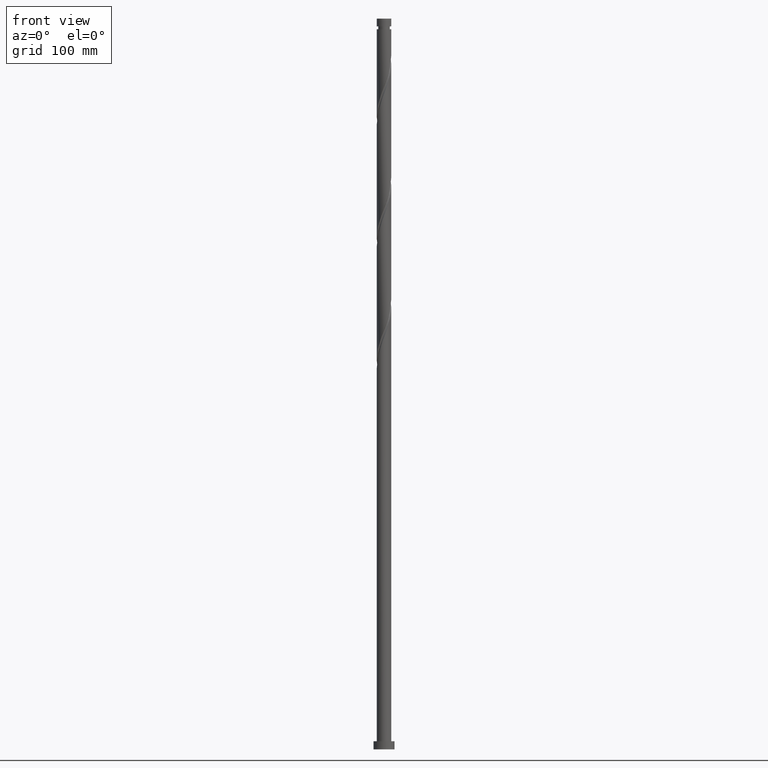
[diagram: clean part render]
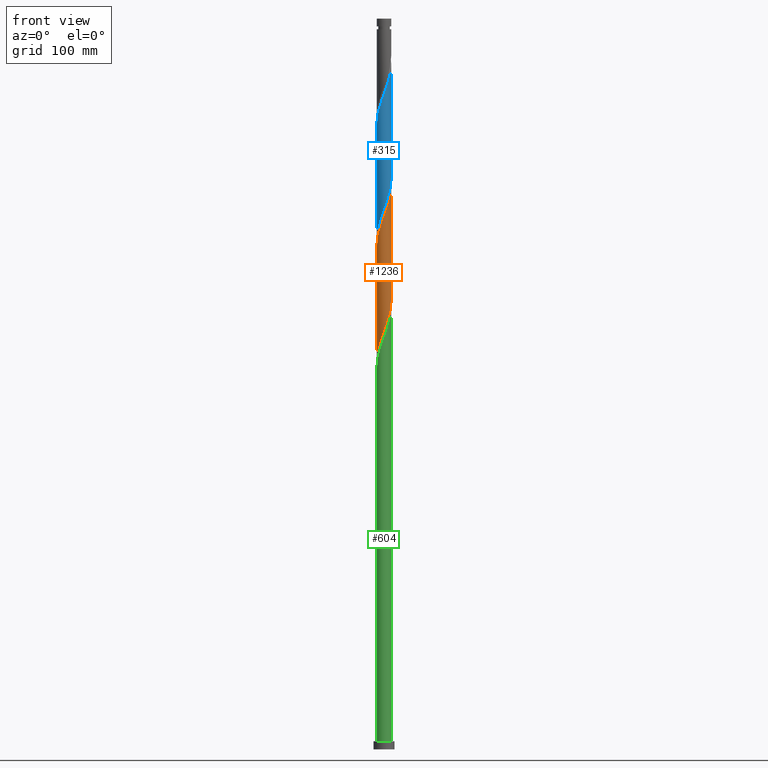
[diagram: same view with three faces highlighted in distinct colors, each labeled with its STEP entity id]
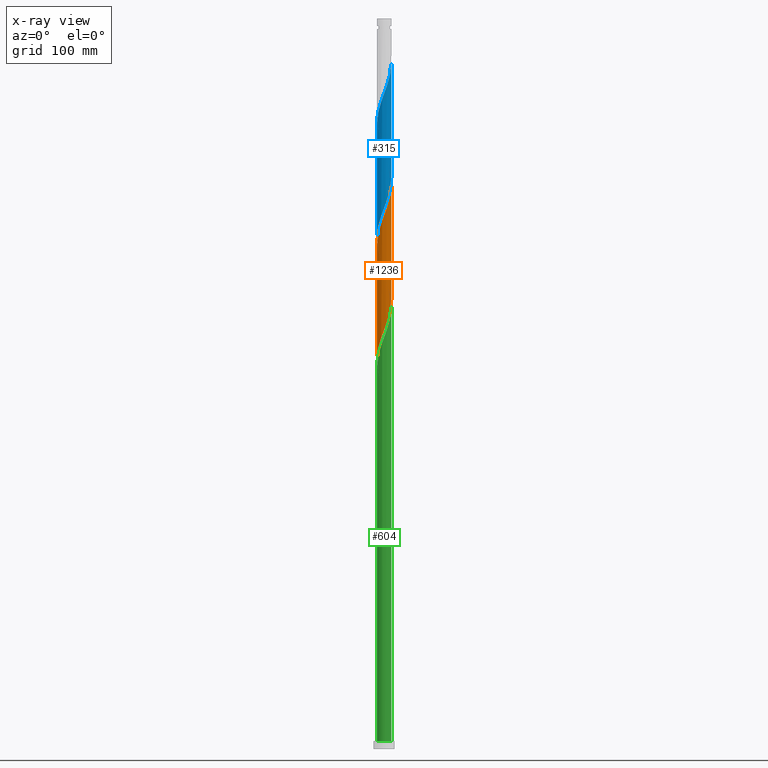
[diagram: x-ray of the same camera — body ghosted, the three highlighted faces saturated]
A machine part, front view with three faces highlighted in distinct colors.
The next image is the same camera in x-ray (body ghosted, the three faces saturated) — at least one of them is partly hidden behind the body in this view.
Their STEP definitions:

[orange] entity #1236 — the highlighted cylindrical surface (edge-blend (fillet) strip) has radius 6.25 mm, axis along (-0, -0, -1).
#55 = CARTESIAN_POINT ( 'NONE',  ( 0.6761694631508513575, -6.240248954859151098, 461.7184717779121002 ) ) ;
#97 = DIRECTION ( 'NONE',  ( -0.000000000000000000, -0.000000000000000000, -1.000000000000000000 ) ) ;
#180 = CARTESIAN_POINT ( 'NONE',  ( 5.284647128575529429, -3.386800390923074389, 378.3361188367356363 ) ) ;
#193 = CARTESIAN_POINT ( 'NONE',  ( -6.250000000000010658, -6.334027216052155665E-15, 433.6643806502768825 ) ) ;
#207 = CARTESIAN_POINT ( 'NONE',  ( -4.703723798979369874, -4.156067201626243879, 347.4537658955592292 ) ) ;
#216 = CARTESIAN_POINT ( 'NONE',  ( -5.816988907484617499, -2.358082316569832138, 440.1008247190885072 ) ) ;
#232 = CARTESIAN_POINT ( 'NONE',  ( 6.250000000000011546, 6.662679571602031845E-15, 486.1643806502768257 ) ) ;
#235 = CARTESIAN_POINT ( 'NONE',  ( -1.052857513261137079, -6.160681054621292674, 457.0861188367356363 ) ) ;
#258 = CARTESIAN_POINT ( 'NONE',  ( 5.387309307051779683, -3.220995279672368206, 477.1596482485003321 ) ) ;
#267 = CARTESIAN_POINT ( 'NONE',  ( 6.037255239842540533, -1.616802142809667275, 481.7920011896768528 ) ) ;
#307 = CARTESIAN_POINT ( 'NONE',  ( -1.811299129615713932, -6.009751045140860448, 356.7184717779121570 ) ) ;
#329 = CARTESIAN_POINT ( 'NONE',  ( 3.207255081654753592, -5.364327995303769470, 370.6155306014414350 ) ) ;
#337 = CYLINDRICAL_SURFACE ( 'NONE', #1755, 6.250000000000000000 ) ;
#354 = CARTESIAN_POINT ( 'NONE',  ( -5.984114506671566858, -1.803572446851818611, 438.5567070720297238 ) ) ;
#366 = CARTESIAN_POINT ( 'NONE',  ( -5.550818018030080125, -2.872441353746455039, 441.6449423661474611 ) ) ;
#374 = CARTESIAN_POINT ( 'NONE',  ( -1.623728683116540505, -6.063119438469199096, 455.5420011896766823 ) ) ;
#385 = CARTESIAN_POINT ( 'NONE',  ( 5.045516553015578332, -3.688531240649310039, 475.6155306014414350 ) ) ;
#405 = CARTESIAN_POINT ( 'NONE',  ( 6.250000000000010658, -0.2403199242980256778, 485.5209748982171618 ) ) ;
#411 =( BOUNDED_CURVE ( )  B_SPLINE_CURVE ( 2, ( #193, #557, #1557, #1196, #354, #216, #366, #2055, #1889, #861, #536, #1226, #1878, #713, #1058, #374, #235, #1041, #1716, #55, #546, #902, #1235, #1547, #873, #700, #1215, #1900, #385, #258, #1623, #752, #267, #1082, #952, #405, #1600 ),
 .UNSPECIFIED., .F., .F. ) 
 B_SPLINE_CURVE_WITH_KNOTS ( ( 3, 2, 2, 2, 2, 2, 2, 2, 2, 2, 2, 2, 2, 2, 2, 2, 2, 2, 3 ),
 ( 0.3045293573162906053, 0.3088235294117647189, 0.3161764705882352811, 0.3235294117647058432, 0.3308823529411765163, 0.3382352941176470784, 0.3455882352941176405, 0.3529411764705882026, 0.3602941176470588758, 0.3676470588235294379, 0.3750000000000000000, 0.3823529411764705621, 0.3897058823529411242, 0.3970588235294117974, 0.4044117647058823595, 0.4117647058823529216, 0.4191176470588234837, 0.4264705882352941568, 0.4295293573162903278 ),
 .UNSPECIFIED. ) 
 CURVE ( )  GEOMETRIC_REPRESENTATION_ITEM ( )  RATIONAL_B_SPLINE_CURVE ( ( 0.9072066346053186958, 0.9068261157890858959, 0.9090909090909571333, 0.9052128875409882758, 0.9090909090909571333, 0.9052128875409882758, 0.9090909090909571333, 0.9052128875409882758, 0.9090909090909571333, 0.9052128875409882758, 0.9090909090909571333, 0.9052128875409882758, 0.9090909090909571333, 0.9052128875409882758, 0.9090909090909571333, 0.9052128875409882758, 0.9090909090909571333, 0.9052128875409882758, 0.9090909090909571333, 0.9052128875409882758, 0.9090909090909571333, 0.9052128875409882758, 0.9090909090909571333, 0.9052128875409882758, 0.9090909090909571333, 0.9052128875409882758, 0.9090909090909571333, 0.9052128875409882758, 0.9090909090909571333, 0.9052128875409882758, 0.9090909090909571333, 0.9052128875409882758, 0.9090909090909571333, 0.9052128875409882758, 0.9090909090909571333, 0.9074776808428596242, 0.9072066346053186958 ) ) 
 REPRESENTATION_ITEM ( '' )  );
#457 = CARTESIAN_POINT ( 'NONE',  ( 0.000000000000000000, 0.000000000000000000, 630.0000000000000000 ) ) ;
#469 = CARTESIAN_POINT ( 'NONE',  ( -0.09709155987255996267, -6.249245812816258017, 361.3508247190885072 ) ) ;
#487 = DIRECTION ( 'NONE',  ( -0.000000000000000000, -0.000000000000000000, -1.000000000000000000 ) ) ;
#492 = CARTESIAN_POINT ( 'NONE',  ( 4.138338151638115470, -4.683658542496072386, 373.7037658955590587 ) ) ;
#536 = CARTESIAN_POINT ( 'NONE',  ( -4.138338151638125240, -4.683658542496078603, 447.8214129543826516 ) ) ;
#546 = CARTESIAN_POINT ( 'NONE',  ( 1.243734296383282700, -6.125000000000010658, 463.2625894249709972 ) ) ;
#557 = CARTESIAN_POINT ( 'NONE',  ( -6.250000000000009770, -0.3376248979954161733, 434.5682998822895229 ) ) ;
#621 = VECTOR ( 'NONE', #97, 1000.000000000000000 ) ;
#656 = CARTESIAN_POINT ( 'NONE',  ( 5.816988907484607729, -2.358082316569825920, 381.4243541308533167 ) ) ;
#676 = CARTESIAN_POINT ( 'NONE',  ( 2.710176889971708469, -5.661523945598178287, 369.0714129543828221 ) ) ;
#677 = ORIENTED_EDGE ( 'NONE', *, *, #2182, .T. ) ;
#688 = CARTESIAN_POINT ( 'NONE',  ( -5.887436458037860199, -2.176236226627275894, 341.2772953073238114 ) ) ;
#700 = CARTESIAN_POINT ( 'NONE',  ( 3.859958618427608013, -4.949609239681941553, 470.9831776602648574 ) ) ;
#713 = CARTESIAN_POINT ( 'NONE',  ( -2.710176889971715131, -5.661523945598188057, 452.4537658955591723 ) ) ;
#721 = CARTESIAN_POINT ( 'NONE',  ( -5.637372882544817720, -2.698615753149817831, 342.8214129543825379 ) ) ;
#752 = CARTESIAN_POINT ( 'NONE',  ( 5.887436458037868192, -2.176236226627279891, 480.2478835426179558 ) ) ;
#800 = CARTESIAN_POINT ( 'NONE',  ( 2.166952786544122045, -5.862321692033683362, 367.5272953073238114 ) ) ;
#824 = CARTESIAN_POINT ( 'NONE',  ( 5.984114506671557976, -1.803572446851815947, 382.9684717779120433 ) ) ;
#839 = EDGE_CURVE ( 'NONE', #1996, #1678, #1001, .T. ) ;
#844 = DIRECTION ( 'NONE',  ( -1.000000000000000000, 0.000000000000000000, 0.000000000000000000 ) ) ;
#847 = CARTESIAN_POINT ( 'NONE',  ( 4.572343029938433112, -4.300185039982784119, 375.2478835426180694 ) ) ;
#861 = CARTESIAN_POINT ( 'NONE',  ( -4.572343029938441994, -4.300185039982788560, 446.2772953073238682 ) ) ;
#873 = CARTESIAN_POINT ( 'NONE',  ( 3.372352897531494254, -5.262103755582083764, 469.4390600132061877 ) ) ;
#882 = CARTESIAN_POINT ( 'NONE',  ( -6.250000000000001776, 7.021209414020131870E-15, 335.3607981996649983 ) ) ;
#893 = CARTESIAN_POINT ( 'NONE',  ( -5.387309307051773466, -3.220995279672362432, 344.3655306014414919 ) ) ;
#902 = CARTESIAN_POINT ( 'NONE',  ( 1.811299129615717485, -6.009751045140867554, 464.8067070720296670 ) ) ;
#952 = CARTESIAN_POINT ( 'NONE',  ( 6.231546110836973185, -0.4799302746365665673, 484.8802364837944765 ) ) ;
#974 = DIRECTION ( 'NONE',  ( -0.000000000000000000, -0.000000000000000000, -1.000000000000000000 ) ) ;
#977 = CARTESIAN_POINT ( 'NONE',  ( -2.348023153125543772, -5.792174658311536994, 355.1743541308532031 ) ) ;
#998 = CARTESIAN_POINT ( 'NONE',  ( 1.623728683116535398, -6.063119438469188438, 365.9831776602650848 ) ) ;
#1001 =( BOUNDED_CURVE ( )  B_SPLINE_CURVE ( 2, ( #1852, #1010, #1670, #1693, #824, #656, #1333, #180, #2008, #847, #492, #1165, #329, #676, #800, #998, #1477, #1357, #469, #1138, #1816, #307, #977, #1658, #1912, #2078, #1725, #207, #1050, #893, #721, #688, #1381, #1367, #1733, #1536, #882 ),
 .UNSPECIFIED., .F., .T. ) 
 B_SPLINE_CURVE_WITH_KNOTS ( ( 3, 2, 2, 2, 2, 2, 2, 2, 2, 2, 2, 2, 2, 2, 2, 2, 2, 2, 3 ),
 ( 0.8045293573162904943, 0.8088235294117647189, 0.8161764705882352811, 0.8235294117647058432, 0.8308823529411765163, 0.8382352941176470784, 0.8455882352941176405, 0.8529411764705882026, 0.8602941176470588758, 0.8676470588235294379, 0.8750000000000000000, 0.8823529411764705621, 0.8897058823529411242, 0.8970588235294117974, 0.9044117647058823595, 0.9117647058823529216, 0.9191176470588234837, 0.9264705882352941568, 0.9295293573162902723 ),
 .UNSPECIFIED. ) 
 CURVE ( )  GEOMETRIC_REPRESENTATION_ITEM ( )  RATIONAL_B_SPLINE_CURVE ( ( 0.9072066346053118124, 0.9068261157890789015, 0.9090909090909502499, 0.9052128875409815034, 0.9090909090909502499, 0.9052128875409815034, 0.9090909090909502499, 0.9052128875409815034, 0.9090909090909502499, 0.9052128875409815034, 0.9090909090909502499, 0.9052128875409815034, 0.9090909090909502499, 0.9052128875409815034, 0.9090909090909502499, 0.9052128875409815034, 0.9090909090909502499, 0.9052128875409815034, 0.9090909090909502499, 0.9052128875409815034, 0.9090909090909502499, 0.9052128875409815034, 0.9090909090909502499, 0.9052128875409815034, 0.9090909090909502499, 0.9052128875409815034, 0.9090909090909502499, 0.9052128875409815034, 0.9090909090909502499, 0.9052128875409815034, 0.9090909090909502499, 0.9052128875409815034, 0.9090909090909502499, 0.9052128875409815034, 0.9090909090909502499, 0.9074776808428527408, 0.9072066346053119235 ) ) 
 REPRESENTATION_ITEM ( '' )  );
#1010 = CARTESIAN_POINT ( 'NONE',  ( 6.250000000000001776, -0.3376248979954084573, 386.9568789676522442 ) ) ;
#1041 = CARTESIAN_POINT ( 'NONE',  ( -0.4819863434057358176, -6.258242670773384475, 458.6302364837944765 ) ) ;
#1050 = CARTESIAN_POINT ( 'NONE',  ( -5.045516553015570338, -3.688531240649301157, 345.9096482485003321 ) ) ;
#1058 = CARTESIAN_POINT ( 'NONE',  ( -2.166952786544126486, -5.862321692033693132, 453.9978835426179558 ) ) ;
#1062 = EDGE_CURVE ( 'NONE', #1697, #1593, #411, .T. ) ;
#1082 = CARTESIAN_POINT ( 'NONE',  ( 6.187074021647211985, -1.057368058992059101, 483.3361188367355226 ) ) ;
#1138 = CARTESIAN_POINT ( 'NONE',  ( -0.6761694631508498032, -6.240248954859140440, 359.8067070720299512 ) ) ;
#1165 = CARTESIAN_POINT ( 'NONE',  ( 3.704333273337801824, -5.067132045009359764, 372.1596482485003321 ) ) ;
#1196 = CARTESIAN_POINT ( 'NONE',  ( -6.151240105858516216, -1.249062577133805751, 437.0125894249708267 ) ) ;
#1215 = CARTESIAN_POINT ( 'NONE',  ( 4.281841208703491830, -4.552838220654097157, 472.5272953073238114 ) ) ;
#1226 = CARTESIAN_POINT ( 'NONE',  ( -3.704333273337807597, -5.067132045009369534, 449.3655306014414919 ) ) ;
#1235 = CARTESIAN_POINT ( 'NONE',  ( 2.348023153125546880, -5.792174658311546764, 466.3508247190885072 ) ) ;
#1236 = ADVANCED_FACE ( 'NONE', ( #1838 ), #337, .T. ) ;
#1333 = CARTESIAN_POINT ( 'NONE',  ( 5.550818018030068579, -2.872441353746452819, 379.8802364837944765 ) ) ;
#1357 = CARTESIAN_POINT ( 'NONE',  ( 0.4819863434057327645, -6.258242670773373817, 362.8949423661473475 ) ) ;
#1367 = CARTESIAN_POINT ( 'NONE',  ( -6.187074021647200439, -1.057368058992055770, 338.1890600132061309 ) ) ;
#1381 = CARTESIAN_POINT ( 'NONE',  ( -6.037255239842528987, -1.616802142809664389, 339.7331776602650280 ) ) ;
#1438 = CARTESIAN_POINT ( 'NONE',  ( -6.250000000000001776, 7.021209414020131870E-15, 335.3607981996649983 ) ) ;
#1462 = EDGE_LOOP ( 'NONE', ( #1505, #1644, #677, #2009 ) ) ;
#1477 = CARTESIAN_POINT ( 'NONE',  ( 1.052857513261134859, -6.160681054621281127, 364.4390600132061877 ) ) ;
#1505 = ORIENTED_EDGE ( 'NONE', *, *, #1924, .F. ) ;
#1536 = CARTESIAN_POINT ( 'NONE',  ( -6.249999999999999112, -0.2403199242980288419, 336.0042039517246621 ) ) ;
#1547 = CARTESIAN_POINT ( 'NONE',  ( 2.884747176635378718, -5.574598271482226863, 467.8949423661473475 ) ) ;
#1557 = CARTESIAN_POINT ( 'NONE',  ( -6.213629152942627520, -0.6732850434263675243, 435.4684717779120433 ) ) ;
#1593 = VERTEX_POINT ( 'NONE', #232 ) ;
#1600 = CARTESIAN_POINT ( 'NONE',  ( 6.250000000000011546, 6.662679571602031845E-15, 486.1643806502768257 ) ) ;
#1607 = CARTESIAN_POINT ( 'NONE',  ( 6.250000000000000000, 7.654042494670957606E-16, 630.0000000000000000 ) ) ;
#1623 = CARTESIAN_POINT ( 'NONE',  ( 5.637372882544824826, -2.698615753149824048, 478.7037658955591155 ) ) ;
#1630 = LINE ( 'NONE', #1811, #1696 ) ;
#1644 = ORIENTED_EDGE ( 'NONE', *, *, #1062, .F. ) ;
#1658 = CARTESIAN_POINT ( 'NONE',  ( -2.884747176635376498, -5.574598271482217982, 353.6302364837944197 ) ) ;
#1670 = CARTESIAN_POINT ( 'NONE',  ( 6.213629152942616862, -0.6732850434263704109, 386.0567070720297806 ) ) ;
#1678 = VERTEX_POINT ( 'NONE', #1438 ) ;
#1693 = CARTESIAN_POINT ( 'NONE',  ( 6.151240105858505558, -1.249062577133806418, 384.5125894249709972 ) ) ;
#1696 = VECTOR ( 'NONE', #487, 1000.000000000000000 ) ;
#1697 = VERTEX_POINT ( 'NONE', #1781 ) ;
#1716 = CARTESIAN_POINT ( 'NONE',  ( 0.09709155987255738141, -6.249245812816267787, 460.1743541308533736 ) ) ;
#1725 = CARTESIAN_POINT ( 'NONE',  ( -4.281841208703485613, -4.552838220654089163, 348.9978835426180126 ) ) ;
#1733 = CARTESIAN_POINT ( 'NONE',  ( -6.231546110836961638, -0.4799302746365632366, 336.6449423661473475 ) ) ;
#1755 = AXIS2_PLACEMENT_3D ( 'NONE', #457, #974, #844 ) ;
#1772 = LINE ( 'NONE', #1607, #621 ) ;
#1781 = CARTESIAN_POINT ( 'NONE',  ( -6.250000000000010658, -6.334027216052155665E-15, 433.6643806502768825 ) ) ;
#1811 = CARTESIAN_POINT ( 'NONE',  ( -6.250000000000000000, 0.000000000000000000, 630.0000000000000000 ) ) ;
#1816 = CARTESIAN_POINT ( 'NONE',  ( -1.243734296383283588, -6.124999999999999112, 358.2625894249709404 ) ) ;
#1838 = FACE_OUTER_BOUND ( 'NONE', #1462, .T. ) ;
#1852 = CARTESIAN_POINT ( 'NONE',  ( 6.250000000000001776, -7.260229308965499018E-15, 387.8607981996649983 ) ) ;
#1878 = CARTESIAN_POINT ( 'NONE',  ( -3.207255081654761586, -5.364327995303776575, 450.9096482485003889 ) ) ;
#1889 = CARTESIAN_POINT ( 'NONE',  ( -4.928495079256990152, -3.843492715452933250, 444.7331776602650848 ) ) ;
#1900 = CARTESIAN_POINT ( 'NONE',  ( 4.703723798979374315, -4.156067201626251872, 474.0714129543826516 ) ) ;
#1912 = CARTESIAN_POINT ( 'NONE',  ( -3.372352897531488480, -5.262103755582074882, 352.0861188367356363 ) ) ;
#1924 = EDGE_CURVE ( 'NONE', #1593, #1996, #1772, .T. ) ;
#1996 = VERTEX_POINT ( 'NONE', #2015 ) ;
#2008 = CARTESIAN_POINT ( 'NONE',  ( 4.928495079256984823, -3.843492715452926589, 376.7920011896767960 ) ) ;
#2009 = ORIENTED_EDGE ( 'NONE', *, *, #839, .F. ) ;
#2015 = CARTESIAN_POINT ( 'NONE',  ( 6.250000000000001776, -7.260229308965499018E-15, 387.8607981996649983 ) ) ;
#2055 = CARTESIAN_POINT ( 'NONE',  ( -5.284647128575539199, -3.386800390923078830, 443.1890600132061877 ) ) ;
#2078 = CARTESIAN_POINT ( 'NONE',  ( -3.859958618427603128, -4.949609239681935335, 350.5420011896767960 ) ) ;
#2182 = EDGE_CURVE ( 'NONE', #1697, #1678, #1630, .T. ) ;

[blue] entity #315 — the highlighted cylindrical surface (edge-blend (fillet) strip) has radius 6.25 mm, axis along (-0, -0, -1).
#10 = CARTESIAN_POINT ( 'NONE',  ( -0.4819863434057358176, -6.258242670773384475, 563.6302364837943060 ) ) ;
#31 = CARTESIAN_POINT ( 'NONE',  ( 1.623728683116535398, -6.063119438469188438, 470.9831776602650280 ) ) ;
#43 = CARTESIAN_POINT ( 'NONE',  ( 6.151240105858505558, -1.249062577133806418, 489.5125894249708836 ) ) ;
#52 = CARTESIAN_POINT ( 'NONE',  ( -4.703723798979369874, -4.156067201626243879, 452.4537658955590587 ) ) ;
#87 = CARTESIAN_POINT ( 'NONE',  ( -6.187074021647200439, -1.057368058992055770, 443.1890600132062445 ) ) ;
#132 = CARTESIAN_POINT ( 'NONE',  ( 0.09709155987255738141, -6.249245812816267787, 565.1743541308532031 ) ) ;
#144 = CARTESIAN_POINT ( 'NONE',  ( -1.052857513261137079, -6.160681054621292674, 562.0861188367357499 ) ) ;
#153 = CARTESIAN_POINT ( 'NONE',  ( 5.637372882544824826, -2.698615753149824048, 583.7037658955590587 ) ) ;
#166 = CARTESIAN_POINT ( 'NONE',  ( 6.037255239842540533, -1.616802142809667275, 586.7920011896767392 ) ) ;
#178 = DIRECTION ( 'NONE',  ( -0.000000000000000000, -0.000000000000000000, -1.000000000000000000 ) ) ;
#190 = CARTESIAN_POINT ( 'NONE',  ( 3.704333273337801824, -5.067132045009359764, 477.1596482485003889 ) ) ;
#204 = CARTESIAN_POINT ( 'NONE',  ( 5.816988907484607729, -2.358082316569825920, 486.4243541308533167 ) ) ;
#205 = CARTESIAN_POINT ( 'NONE',  ( 0.000000000000000000, 0.000000000000000000, 630.0000000000000000 ) ) ;
#223 = CARTESIAN_POINT ( 'NONE',  ( -3.859958618427603128, -4.949609239681935335, 455.5420011896768528 ) ) ;
#256 = VECTOR ( 'NONE', #620, 1000.000000000000000 ) ;
#315 = ADVANCED_FACE ( 'NONE', ( #1015 ), #1759, .T. ) ;
#320 = CARTESIAN_POINT ( 'NONE',  ( 6.250000000000012434, 3.047503660553396625E-15, 591.1643806502768257 ) ) ;
#339 = CARTESIAN_POINT ( 'NONE',  ( 5.045516553015578332, -3.688531240649310039, 580.6155306014417192 ) ) ;
#381 = CARTESIAN_POINT ( 'NONE',  ( -2.884747176635376498, -5.574598271482217982, 458.6302364837944765 ) ) ;
#382 = DIRECTION ( 'NONE',  ( -1.000000000000000000, 0.000000000000000000, 0.000000000000000000 ) ) ;
#386 = VERTEX_POINT ( 'NONE', #396 ) ;
#396 = CARTESIAN_POINT ( 'NONE',  ( 6.250000000000012434, 3.047503660553396625E-15, 591.1643806502768257 ) ) ;
#419 = CARTESIAN_POINT ( 'NONE',  ( 6.250000000000001776, -7.260229308965499018E-15, 492.8607981996651120 ) ) ;
#451 = VECTOR ( 'NONE', #178, 1000.000000000000000 ) ;
#480 = CARTESIAN_POINT ( 'NONE',  ( 2.884747176635378718, -5.574598271482226863, 572.8949423661474611 ) ) ;
#503 = CARTESIAN_POINT ( 'NONE',  ( 5.387309307051779683, -3.220995279672368206, 582.1596482485002753 ) ) ;
#510 = CARTESIAN_POINT ( 'NONE',  ( 5.284647128575529429, -3.386800390923074389, 483.3361188367355794 ) ) ;
#512 = CARTESIAN_POINT ( 'NONE',  ( 1.811299129615717485, -6.009751045140867554, 569.8067070720298943 ) ) ;
#524 = CARTESIAN_POINT ( 'NONE',  ( -0.6761694631508498032, -6.240248954859140440, 464.8067070720297806 ) ) ;
#534 = CARTESIAN_POINT ( 'NONE',  ( 6.250000000000001776, -7.260229308965499018E-15, 492.8607981996651120 ) ) ;
#544 = CARTESIAN_POINT ( 'NONE',  ( 3.207255081654753592, -5.364327995303769470, 475.6155306014415487 ) ) ;
#571 = CARTESIAN_POINT ( 'NONE',  ( -6.250000000000001776, 7.021209414020131870E-15, 440.3607981996651120 ) ) ;
#573 = LINE ( 'NONE', #1246, #451 ) ;
#576 = EDGE_CURVE ( 'NONE', #386, #726, #1965, .T. ) ;
#581 = CARTESIAN_POINT ( 'NONE',  ( -6.231546110836961638, -0.4799302746365632366, 441.6449423661474611 ) ) ;
#594 = CARTESIAN_POINT ( 'NONE',  ( -5.387309307051773466, -3.220995279672362432, 449.3655306014414919 ) ) ;
#620 = DIRECTION ( 'NONE',  ( -0.000000000000000000, -0.000000000000000000, -1.000000000000000000 ) ) ;
#633 = CARTESIAN_POINT ( 'NONE',  ( -6.250000000000012434, -0.3376248979953987428, 539.5682998822894660 ) ) ;
#645 = CARTESIAN_POINT ( 'NONE',  ( -4.928495079256990152, -3.843492715452933250, 549.7331776602650280 ) ) ;
#667 = CARTESIAN_POINT ( 'NONE',  ( -2.710176889971715131, -5.661523945598188057, 557.4537658955591723 ) ) ;
#710 = CARTESIAN_POINT ( 'NONE',  ( 4.572343029938433112, -4.300185039982784119, 480.2478835426179558 ) ) ;
#719 = CARTESIAN_POINT ( 'NONE',  ( -5.045516553015570338, -3.688531240649301157, 450.9096482485003889 ) ) ;
#726 = VERTEX_POINT ( 'NONE', #419 ) ;
#759 = CARTESIAN_POINT ( 'NONE',  ( -5.887436458037860199, -2.176236226627275894, 446.2772953073239819 ) ) ;
#810 = EDGE_CURVE ( 'NONE', #1166, #386, #1686, .T. ) ;
#812 = CARTESIAN_POINT ( 'NONE',  ( 5.887436458037868192, -2.176236226627279891, 585.2478835426179558 ) ) ;
#818 = ORIENTED_EDGE ( 'NONE', *, *, #1619, .F. ) ;
#857 = CARTESIAN_POINT ( 'NONE',  ( 1.052857513261134859, -6.160681054621281127, 469.4390600132063582 ) ) ;
#869 = CARTESIAN_POINT ( 'NONE',  ( 5.984114506671557976, -1.803572446851815947, 487.9684717779121002 ) ) ;
#871 = DIRECTION ( 'NONE',  ( -0.000000000000000000, -0.000000000000000000, -1.000000000000000000 ) ) ;
#890 = CARTESIAN_POINT ( 'NONE',  ( -0.09709155987255996267, -6.249245812816258017, 466.3508247190885641 ) ) ;
#919 = AXIS2_PLACEMENT_3D ( 'NONE', #205, #871, #382 ) ;
#964 = CARTESIAN_POINT ( 'NONE',  ( 3.859958618427608013, -4.949609239681941553, 575.9831776602649143 ) ) ;
#989 = CARTESIAN_POINT ( 'NONE',  ( -4.572343029938441994, -4.300185039982788560, 551.2772953073238114 ) ) ;
#1015 = FACE_OUTER_BOUND ( 'NONE', #1974, .T. ) ;
#1048 = CARTESIAN_POINT ( 'NONE',  ( 4.928495079256984823, -3.843492715452926589, 481.7920011896768528 ) ) ;
#1085 = CARTESIAN_POINT ( 'NONE',  ( 6.250000000000000000, 7.654042494670957606E-16, 630.0000000000000000 ) ) ;
#1101 = CARTESIAN_POINT ( 'NONE',  ( -6.250000000000000000, -0.2403199242980114114, 441.0042039517248327 ) ) ;
#1152 = CARTESIAN_POINT ( 'NONE',  ( 4.281841208703491830, -4.552838220654097157, 577.5272953073239250 ) ) ;
#1166 = VERTEX_POINT ( 'NONE', #2102 ) ;
#1174 = EDGE_CURVE ( 'NONE', #1166, #2132, #573, .T. ) ;
#1176 = CARTESIAN_POINT ( 'NONE',  ( -5.984114506671566858, -1.803572446851818611, 543.5567070720298943 ) ) ;
#1182 = CARTESIAN_POINT ( 'NONE',  ( 6.250000000000002665, -0.3376248979953909712, 491.9568789676523011 ) ) ;
#1184 = CARTESIAN_POINT ( 'NONE',  ( 2.348023153125546880, -5.792174658311546764, 571.3508247190887914 ) ) ;
#1194 = CARTESIAN_POINT ( 'NONE',  ( -1.811299129615713932, -6.009751045140860448, 461.7184717779121002 ) ) ;
#1212 = CARTESIAN_POINT ( 'NONE',  ( 0.4819863434057327645, -6.258242670773373817, 467.8949423661474043 ) ) ;
#1222 =( BOUNDED_CURVE ( )  B_SPLINE_CURVE ( 2, ( #534, #1182, #1714, #43, #869, #204, #1704, #510, #1048, #710, #1365, #190, #544, #2042, #1545, #31, #857, #1212, #890, #524, #1897, #1194, #1876, #381, #1731, #223, #1564, #52, #719, #594, #1244, #759, #1931, #87, #581, #1101, #571 ),
 .UNSPECIFIED., .F., .T. ) 
 B_SPLINE_CURVE_WITH_KNOTS ( ( 3, 2, 2, 2, 2, 2, 2, 2, 2, 2, 2, 2, 2, 2, 2, 2, 2, 2, 3 ),
 ( 0.5545293573162902723, 0.5588235294117647189, 0.5661764705882352811, 0.5735294117647058432, 0.5808823529411765163, 0.5882352941176470784, 0.5955882352941176405, 0.6029411764705882026, 0.6102941176470588758, 0.6176470588235294379, 0.6250000000000000000, 0.6323529411764705621, 0.6397058823529411242, 0.6470588235294117974, 0.6544117647058823595, 0.6617647058823529216, 0.6691176470588234837, 0.6764705882352941568, 0.6795293573162904943 ),
 .UNSPECIFIED. ) 
 CURVE ( )  GEOMETRIC_REPRESENTATION_ITEM ( )  RATIONAL_B_SPLINE_CURVE ( ( 0.9072066346053119235, 0.9068261157890789015, 0.9090909090909502499, 0.9052128875409815034, 0.9090909090909502499, 0.9052128875409815034, 0.9090909090909502499, 0.9052128875409815034, 0.9090909090909502499, 0.9052128875409815034, 0.9090909090909502499, 0.9052128875409815034, 0.9090909090909502499, 0.9052128875409815034, 0.9090909090909502499, 0.9052128875409815034, 0.9090909090909502499, 0.9052128875409815034, 0.9090909090909502499, 0.9052128875409815034, 0.9090909090909502499, 0.9052128875409815034, 0.9090909090909502499, 0.9052128875409815034, 0.9090909090909502499, 0.9052128875409815034, 0.9090909090909502499, 0.9052128875409815034, 0.9090909090909502499, 0.9052128875409815034, 0.9090909090909502499, 0.9052128875409815034, 0.9090909090909502499, 0.9052128875409815034, 0.9090909090909502499, 0.9074776808428526298, 0.9072066346053118124 ) ) 
 REPRESENTATION_ITEM ( '' )  );
#1244 = CARTESIAN_POINT ( 'NONE',  ( -5.637372882544817720, -2.698615753149817831, 447.8214129543827084 ) ) ;
#1246 = CARTESIAN_POINT ( 'NONE',  ( -6.250000000000000000, 0.000000000000000000, 630.0000000000000000 ) ) ;
#1307 = CARTESIAN_POINT ( 'NONE',  ( 3.372352897531494254, -5.262103755582083764, 574.4390600132063582 ) ) ;
#1313 = CARTESIAN_POINT ( 'NONE',  ( -6.250000000000001776, 7.021209414020131870E-15, 440.3607981996651120 ) ) ;
#1318 = CARTESIAN_POINT ( 'NONE',  ( 0.6761694631508513575, -6.240248954859151098, 566.7184717779118728 ) ) ;
#1347 = CARTESIAN_POINT ( 'NONE',  ( 6.231546110836973185, -0.4799302746365665673, 589.8802364837945333 ) ) ;
#1365 = CARTESIAN_POINT ( 'NONE',  ( 4.138338151638115470, -4.683658542496072386, 478.7037658955591155 ) ) ;
#1489 = CARTESIAN_POINT ( 'NONE',  ( -3.207255081654761586, -5.364327995303776575, 555.9096482485001616 ) ) ;
#1503 = CARTESIAN_POINT ( 'NONE',  ( -4.138338151638125240, -4.683658542496078603, 552.8214129543829358 ) ) ;
#1515 = CARTESIAN_POINT ( 'NONE',  ( -5.816988907484617499, -2.358082316569832138, 545.1008247190884504 ) ) ;
#1524 = CARTESIAN_POINT ( 'NONE',  ( -6.250000000000010658, 6.005374860502280273E-15, 538.6643806502769394 ) ) ;
#1545 = CARTESIAN_POINT ( 'NONE',  ( 2.166952786544122045, -5.862321692033683362, 472.5272953073239250 ) ) ;
#1564 = CARTESIAN_POINT ( 'NONE',  ( -4.281841208703485613, -4.552838220654089163, 453.9978835426180126 ) ) ;
#1619 = EDGE_CURVE ( 'NONE', #726, #2132, #1222, .T. ) ;
#1646 = CARTESIAN_POINT ( 'NONE',  ( -6.151240105858516216, -1.249062577133805751, 542.0125894249708836 ) ) ;
#1680 = CARTESIAN_POINT ( 'NONE',  ( -5.284647128575539199, -3.386800390923078830, 548.1890600132062445 ) ) ;
#1686 =( BOUNDED_CURVE ( )  B_SPLINE_CURVE ( 2, ( #1524, #633, #1865, #1646, #1176, #1515, #2168, #1680, #645, #989, #1503, #2021, #1489, #667, #1995, #2178, #144, #10, #132, #1318, #2033, #512, #1184, #480, #1307, #964, #1152, #1831, #339, #503, #153, #812, #166, #2191, #1347, #1984, #320 ),
 .UNSPECIFIED., .F., .T. ) 
 B_SPLINE_CURVE_WITH_KNOTS ( ( 3, 2, 2, 2, 2, 2, 2, 2, 2, 2, 2, 2, 2, 2, 2, 2, 2, 2, 3 ),
 ( 0.5545293573162903833, 0.5588235294117647189, 0.5661764705882352811, 0.5735294117647058432, 0.5808823529411764053, 0.5882352941176470784, 0.5955882352941176405, 0.6029411764705883137, 0.6102941176470588758, 0.6176470588235294379, 0.6250000000000000000, 0.6323529411764705621, 0.6397058823529411242, 0.6470588235294116863, 0.6544117647058823595, 0.6617647058823529216, 0.6691176470588235947, 0.6764705882352941568, 0.6795293573162904943 ),
 .UNSPECIFIED. ) 
 CURVE ( )  GEOMETRIC_REPRESENTATION_ITEM ( )  RATIONAL_B_SPLINE_CURVE ( ( 0.9072066346053186958, 0.9068261157890857849, 0.9090909090909571333, 0.9052128875409882758, 0.9090909090909571333, 0.9052128875409882758, 0.9090909090909571333, 0.9052128875409882758, 0.9090909090909571333, 0.9052128875409882758, 0.9090909090909571333, 0.9052128875409882758, 0.9090909090909571333, 0.9052128875409882758, 0.9090909090909571333, 0.9052128875409882758, 0.9090909090909571333, 0.9052128875409882758, 0.9090909090909571333, 0.9052128875409882758, 0.9090909090909571333, 0.9052128875409882758, 0.9090909090909571333, 0.9052128875409882758, 0.9090909090909571333, 0.9052128875409882758, 0.9090909090909571333, 0.9052128875409882758, 0.9090909090909571333, 0.9052128875409882758, 0.9090909090909571333, 0.9052128875409882758, 0.9090909090909571333, 0.9052128875409882758, 0.9090909090909571333, 0.9074776808428595132, 0.9072066346053186958 ) ) 
 REPRESENTATION_ITEM ( '' )  );
#1704 = CARTESIAN_POINT ( 'NONE',  ( 5.550818018030068579, -2.872441353746452819, 484.8802364837944765 ) ) ;
#1714 = CARTESIAN_POINT ( 'NONE',  ( 6.213629152942616862, -0.6732850434263704109, 491.0567070720297238 ) ) ;
#1731 = CARTESIAN_POINT ( 'NONE',  ( -3.372352897531488480, -5.262103755582074882, 457.0861188367356931 ) ) ;
#1759 = CYLINDRICAL_SURFACE ( 'NONE', #919, 6.250000000000000000 ) ;
#1807 = ORIENTED_EDGE ( 'NONE', *, *, #1174, .T. ) ;
#1831 = CARTESIAN_POINT ( 'NONE',  ( 4.703723798979374315, -4.156067201626251872, 579.0714129543825948 ) ) ;
#1865 = CARTESIAN_POINT ( 'NONE',  ( -6.213629152942627520, -0.6732850434263675243, 540.4684717779119865 ) ) ;
#1876 = CARTESIAN_POINT ( 'NONE',  ( -2.348023153125543772, -5.792174658311536994, 460.1743541308532599 ) ) ;
#1897 = CARTESIAN_POINT ( 'NONE',  ( -1.243734296383283588, -6.124999999999999112, 463.2625894249708836 ) ) ;
#1931 = CARTESIAN_POINT ( 'NONE',  ( -6.037255239842528987, -1.616802142809664389, 444.7331776602650280 ) ) ;
#1963 = ORIENTED_EDGE ( 'NONE', *, *, #576, .F. ) ;
#1965 = LINE ( 'NONE', #1085, #256 ) ;
#1974 = EDGE_LOOP ( 'NONE', ( #1963, #2155, #1807, #818 ) ) ;
#1984 = CARTESIAN_POINT ( 'NONE',  ( 6.250000000000010658, -0.2403199242980126604, 590.5209748982172187 ) ) ;
#1995 = CARTESIAN_POINT ( 'NONE',  ( -2.166952786544126486, -5.862321692033693132, 558.9978835426181831 ) ) ;
#2021 = CARTESIAN_POINT ( 'NONE',  ( -3.704333273337807597, -5.067132045009369534, 554.3655306014414919 ) ) ;
#2033 = CARTESIAN_POINT ( 'NONE',  ( 1.243734296383282700, -6.125000000000010658, 568.2625894249711109 ) ) ;
#2042 = CARTESIAN_POINT ( 'NONE',  ( 2.710176889971708469, -5.661523945598178287, 474.0714129543827084 ) ) ;
#2102 = CARTESIAN_POINT ( 'NONE',  ( -6.250000000000010658, 6.005374860502280273E-15, 538.6643806502769394 ) ) ;
#2132 = VERTEX_POINT ( 'NONE', #1313 ) ;
#2155 = ORIENTED_EDGE ( 'NONE', *, *, #810, .F. ) ;
#2168 = CARTESIAN_POINT ( 'NONE',  ( -5.550818018030080125, -2.872441353746455039, 546.6449423661473475 ) ) ;
#2178 = CARTESIAN_POINT ( 'NONE',  ( -1.623728683116540505, -6.063119438469199096, 560.5420011896767392 ) ) ;
#2191 = CARTESIAN_POINT ( 'NONE',  ( 6.187074021647211985, -1.057368058992059101, 588.3361188367354089 ) ) ;

[green] entity #604 — the highlighted cylindrical surface (edge-blend (fillet) strip) has radius 6.25 mm, axis along (-0, -0, -1).
#3 = AXIS2_PLACEMENT_3D ( 'NONE', #1820, #282, #947 ) ;
#8 = CARTESIAN_POINT ( 'NONE',  ( -2.166952786544126486, -5.862321692033693132, 348.9978835426180126 ) ) ;
#23 = LINE ( 'NONE', #732, #69 ) ;
#32 = CARTESIAN_POINT ( 'NONE',  ( 2.348023153125546880, -5.792174658311546764, 361.3508247190885641 ) ) ;
#44 = CARTESIAN_POINT ( 'NONE',  ( -5.550818018030080125, -2.872441353746455039, 336.6449423661472906 ) ) ;
#53 = CARTESIAN_POINT ( 'NONE',  ( -5.284647128575539199, -3.386800390923078830, 338.1890600132062445 ) ) ;
#61 = EDGE_CURVE ( 'NONE', #1898, #1131, #1975, .T. ) ;
#63 = DIRECTION ( 'NONE',  ( -0.000000000000000000, -0.000000000000000000, -1.000000000000000000 ) ) ;
#69 = VECTOR ( 'NONE', #1031, 1000.000000000000000 ) ;
#85 = CARTESIAN_POINT ( 'NONE',  ( 5.637372882544824826, -2.698615753149824048, 373.7037658955591155 ) ) ;
#88 = CARTESIAN_POINT ( 'NONE',  ( 4.703723798979374315, -4.156067201626251872, 369.0714129543827084 ) ) ;
#109 = CARTESIAN_POINT ( 'NONE',  ( -6.151240105858516216, -1.249062577133805751, 332.0125894249709404 ) ) ;
#191 = CARTESIAN_POINT ( 'NONE',  ( -3.704333273337807597, -5.067132045009369534, 344.3655306014414919 ) ) ;
#233 = CARTESIAN_POINT ( 'NONE',  ( 3.372352897531494254, -5.262103755582083764, 364.4390600132063014 ) ) ;
#275 = CARTESIAN_POINT ( 'NONE',  ( 6.250000000000010658, -0.2403199242980235129, 380.5209748982172187 ) ) ;
#282 = DIRECTION ( 'NONE',  ( 0.000000000000000000, 0.000000000000000000, 1.000000000000000000 ) ) ;
#300 = EDGE_CURVE ( 'NONE', #1993, #1000, #1066, .T. ) ;
#494 = EDGE_LOOP ( 'NONE', ( #1804, #1929, #968, #1504 ) ) ;
#553 = CARTESIAN_POINT ( 'NONE',  ( 2.884747176635378718, -5.574598271482226863, 362.8949423661473475 ) ) ;
#582 = CARTESIAN_POINT ( 'NONE',  ( 5.045516553015578332, -3.688531240649310039, 370.6155306014414919 ) ) ;
#590 = CARTESIAN_POINT ( 'NONE',  ( 0.09709155987255738141, -6.249245812816267787, 355.1743541308532599 ) ) ;
#597 = CARTESIAN_POINT ( 'NONE',  ( -6.250000000000010658, -6.334027216052155665E-15, 328.6643806502768825 ) ) ;
#604 = ADVANCED_FACE ( 'NONE', ( #1973 ), #1424, .T. ) ;
#605 = LINE ( 'NONE', #1111, #1694 ) ;
#698 = CARTESIAN_POINT ( 'NONE',  ( -4.138338151638125240, -4.683658542496078603, 342.8214129543826516 ) ) ;
#707 = AXIS2_PLACEMENT_3D ( 'NONE', #1767, #1262, #1615 ) ;
#711 = CARTESIAN_POINT ( 'NONE',  ( -4.572343029938441994, -4.300185039982788560, 341.2772953073238114 ) ) ;
#732 = CARTESIAN_POINT ( 'NONE',  ( 6.250000000000000000, 7.654042494670957606E-16, 630.0000000000000000 ) ) ;
#785 = CARTESIAN_POINT ( 'NONE',  ( 6.231546110836973185, -0.4799302746365665673, 379.8802364837945333 ) ) ;
#787 = CARTESIAN_POINT ( 'NONE',  ( -6.250000000000011546, -0.3376248979954172835, 329.5682998822895797 ) ) ;
#858 = CARTESIAN_POINT ( 'NONE',  ( -2.710176889971715131, -5.661523945598188057, 347.4537658955591723 ) ) ;
#870 = EDGE_CURVE ( 'NONE', #1000, #1131, #23, .T. ) ;
#887 = CARTESIAN_POINT ( 'NONE',  ( -1.623728683116540505, -6.063119438469199096, 350.5420011896767960 ) ) ;
#947 = DIRECTION ( 'NONE',  ( 1.000000000000000000, 0.000000000000000000, 0.000000000000000000 ) ) ;
#950 = CARTESIAN_POINT ( 'NONE',  ( 5.887436458037868192, -2.176236226627279891, 375.2478835426179558 ) ) ;
#968 = ORIENTED_EDGE ( 'NONE', *, *, #1668, .T. ) ;
#1000 = VERTEX_POINT ( 'NONE', #1205 ) ;
#1029 = CARTESIAN_POINT ( 'NONE',  ( 0.6761694631508513575, -6.240248954859151098, 356.7184717779120433 ) ) ;
#1031 = DIRECTION ( 'NONE',  ( -0.000000000000000000, -0.000000000000000000, -1.000000000000000000 ) ) ;
#1059 = CARTESIAN_POINT ( 'NONE',  ( 6.187074021647211985, -1.057368058992059101, 378.3361188367356363 ) ) ;
#1066 =( BOUNDED_CURVE ( )  B_SPLINE_CURVE ( 2, ( #597, #787, #1268, #109, #1460, #1289, #44, #53, #1270, #711, #698, #191, #1390, #858, #8, #887, #1240, #1251, #590, #1029, #1163, #2030, #32, #553, #233, #2100, #1080, #88, #582, #1389, #85, #950, #1608, #1059, #785, #275, #1859 ),
 .UNSPECIFIED., .F., .T. ) 
 B_SPLINE_CURVE_WITH_KNOTS ( ( 3, 2, 2, 2, 2, 2, 2, 2, 2, 2, 2, 2, 2, 2, 2, 2, 2, 2, 3 ),
 ( 0.05452935731629061922, 0.05882352941176471894, 0.06617647058823528106, 0.07352941176470584317, 0.08088235294117651630, 0.08823529411764707842, 0.09558823529411764053, 0.1029411764705882026, 0.1102941176470588758, 0.1176470588235294379, 0.1250000000000000000, 0.1323529411764705621, 0.1397058823529411242, 0.1470588235294117974, 0.1544117647058823595, 0.1617647058823529216, 0.1691176470588234837, 0.1764705882352941568, 0.1795293573162903555 ),
 .UNSPECIFIED. ) 
 CURVE ( )  GEOMETRIC_REPRESENTATION_ITEM ( )  RATIONAL_B_SPLINE_CURVE ( ( 0.9072066346053189179, 0.9068261157890860069, 0.9090909090909571333, 0.9052128875409882758, 0.9090909090909571333, 0.9052128875409882758, 0.9090909090909571333, 0.9052128875409882758, 0.9090909090909571333, 0.9052128875409882758, 0.9090909090909571333, 0.9052128875409882758, 0.9090909090909571333, 0.9052128875409882758, 0.9090909090909571333, 0.9052128875409882758, 0.9090909090909571333, 0.9052128875409882758, 0.9090909090909571333, 0.9052128875409882758, 0.9090909090909571333, 0.9052128875409882758, 0.9090909090909571333, 0.9052128875409882758, 0.9090909090909571333, 0.9052128875409882758, 0.9090909090909571333, 0.9052128875409882758, 0.9090909090909571333, 0.9052128875409882758, 0.9090909090909571333, 0.9052128875409882758, 0.9090909090909571333, 0.9052128875409882758, 0.9090909090909571333, 0.9074776808428595132, 0.9072066346053186958 ) ) 
 REPRESENTATION_ITEM ( '' )  );
#1080 = CARTESIAN_POINT ( 'NONE',  ( 4.281841208703491830, -4.552838220654097157, 367.5272953073238682 ) ) ;
#1111 = CARTESIAN_POINT ( 'NONE',  ( -6.250000000000000000, 0.000000000000000000, 630.0000000000000000 ) ) ;
#1113 = CARTESIAN_POINT ( 'NONE',  ( 6.250000000000000000, 7.654042494670957606E-16, 7.000000000000000000 ) ) ;
#1122 = CARTESIAN_POINT ( 'NONE',  ( -6.250000000000010658, -6.334027216052155665E-15, 328.6643806502768825 ) ) ;
#1131 = VERTEX_POINT ( 'NONE', #1113 ) ;
#1163 = CARTESIAN_POINT ( 'NONE',  ( 1.243734296383282700, -6.125000000000010658, 358.2625894249708836 ) ) ;
#1205 = CARTESIAN_POINT ( 'NONE',  ( 6.250000000000011546, 6.662679571602031845E-15, 381.1643806502768825 ) ) ;
#1240 = CARTESIAN_POINT ( 'NONE',  ( -1.052857513261137079, -6.160681054621292674, 352.0861188367356363 ) ) ;
#1251 = CARTESIAN_POINT ( 'NONE',  ( -0.4819863434057358176, -6.258242670773384475, 353.6302364837943060 ) ) ;
#1262 = DIRECTION ( 'NONE',  ( -0.000000000000000000, -0.000000000000000000, -1.000000000000000000 ) ) ;
#1268 = CARTESIAN_POINT ( 'NONE',  ( -6.213629152942627520, -0.6732850434263675243, 330.4684717779120433 ) ) ;
#1270 = CARTESIAN_POINT ( 'NONE',  ( -4.928495079256990152, -3.843492715452933250, 339.7331776602649143 ) ) ;
#1289 = CARTESIAN_POINT ( 'NONE',  ( -5.816988907484617499, -2.358082316569832138, 335.1008247190884504 ) ) ;
#1389 = CARTESIAN_POINT ( 'NONE',  ( 5.387309307051779683, -3.220995279672368206, 372.1596482485003321 ) ) ;
#1390 = CARTESIAN_POINT ( 'NONE',  ( -3.207255081654761586, -5.364327995303776575, 345.9096482485002753 ) ) ;
#1424 = CYLINDRICAL_SURFACE ( 'NONE', #707, 6.250000000000000000 ) ;
#1460 = CARTESIAN_POINT ( 'NONE',  ( -5.984114506671566858, -1.803572446851818611, 333.5567070720297806 ) ) ;
#1504 = ORIENTED_EDGE ( 'NONE', *, *, #61, .T. ) ;
#1608 = CARTESIAN_POINT ( 'NONE',  ( 6.037255239842540533, -1.616802142809667275, 376.7920011896766823 ) ) ;
#1615 = DIRECTION ( 'NONE',  ( -1.000000000000000000, 0.000000000000000000, 0.000000000000000000 ) ) ;
#1668 = EDGE_CURVE ( 'NONE', #1993, #1898, #605, .T. ) ;
#1694 = VECTOR ( 'NONE', #63, 1000.000000000000000 ) ;
#1767 = CARTESIAN_POINT ( 'NONE',  ( 0.000000000000000000, 0.000000000000000000, 630.0000000000000000 ) ) ;
#1804 = ORIENTED_EDGE ( 'NONE', *, *, #870, .F. ) ;
#1820 = CARTESIAN_POINT ( 'NONE',  ( 0.000000000000000000, 0.000000000000000000, 7.000000000000000000 ) ) ;
#1859 = CARTESIAN_POINT ( 'NONE',  ( 6.250000000000011546, 6.662679571602031845E-15, 381.1643806502768825 ) ) ;
#1898 = VERTEX_POINT ( 'NONE', #2129 ) ;
#1929 = ORIENTED_EDGE ( 'NONE', *, *, #300, .F. ) ;
#1973 = FACE_OUTER_BOUND ( 'NONE', #494, .T. ) ;
#1975 = CIRCLE ( 'NONE', #3, 6.250000000000000000 ) ;
#1993 = VERTEX_POINT ( 'NONE', #1122 ) ;
#2030 = CARTESIAN_POINT ( 'NONE',  ( 1.811299129615717485, -6.009751045140867554, 359.8067070720297238 ) ) ;
#2100 = CARTESIAN_POINT ( 'NONE',  ( 3.859958618427608013, -4.949609239681941553, 365.9831776602650280 ) ) ;
#2129 = CARTESIAN_POINT ( 'NONE',  ( -6.250000000000000000, 0.000000000000000000, 7.000000000000000000 ) ) ;